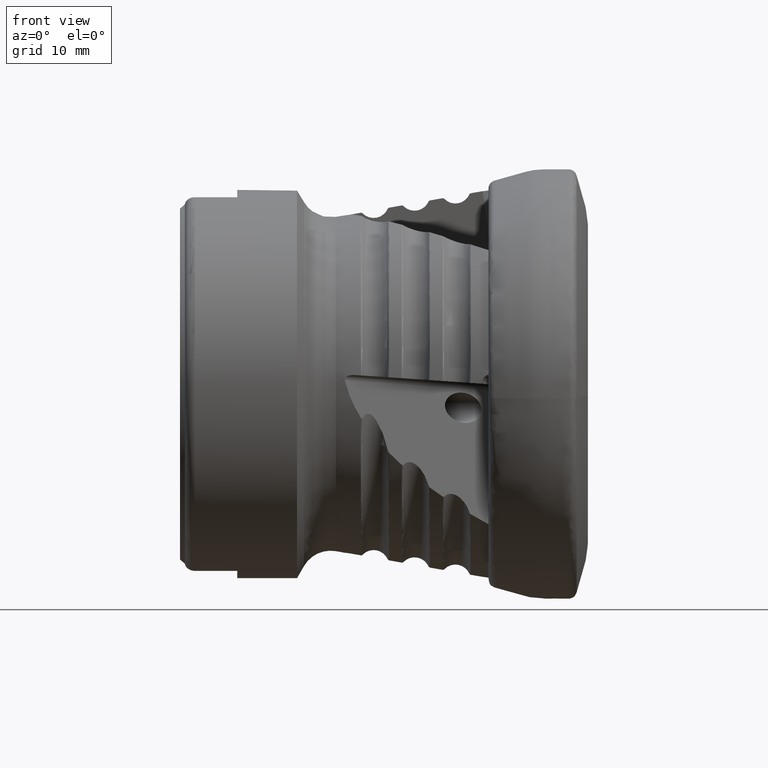
[diagram: clean part render]
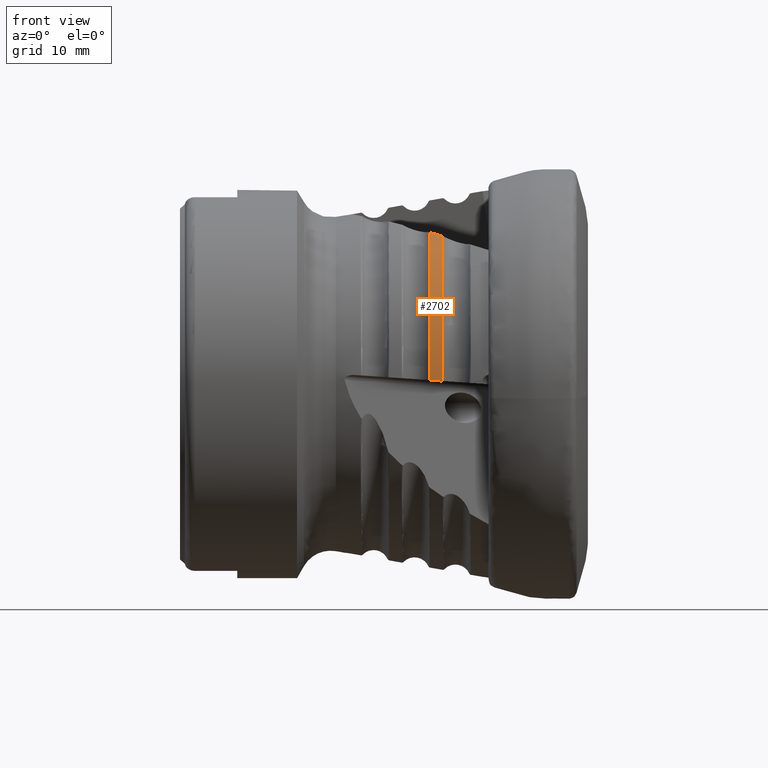
[diagram: same view with one face highlighted and labeled with its STEP entity id]
A machine part, front view. The second image highlights one B-rep face of the part: STEP entity #2702.
In plain terms, the highlighted conical surface has half-angle 9.928 deg.
Its self-contained STEP definition (entity closure, byte-faithful):
#157 = B_SPLINE_CURVE_WITH_KNOTS ( 'NONE', 3,
 ( #4597, #215, #5772, #845 ),
 .UNSPECIFIED., .F., .F.,
 ( 4, 4 ),
 ( 2.035607901788819600E-007, 0.001244659099788397300 ),
 .UNSPECIFIED. ) ;
#207 = CARTESIAN_POINT ( 'NONE',  ( -13.72949393109019300, -10.72089343970409400, 14.60611917307303100 ) ) ;
#215 = CARTESIAN_POINT ( 'NONE',  ( -13.71692775298188300, -18.11533347845106300, 0.3176182126530244200 ) ) ;
#253 = ORIENTED_EDGE ( 'NONE', *, *, #8087, .F. ) ;
#481 = CIRCLE ( 'NONE', #2706, 18.18943080960135800 ) ;
#618 = ORIENTED_EDGE ( 'NONE', *, *, #3080, .T. ) ;
#815 = DIRECTION ( 'NONE',  ( -1.000000000000000000, 0.0000000000000000000, 0.0000000000000000000 ) ) ;
#845 = CARTESIAN_POINT ( 'NONE',  ( -14.53201490601524200, -17.97152127923654100, 0.3746146587207507300 ) ) ;
#994 = CARTESIAN_POINT ( 'NONE',  ( -14.53201490601524200, -17.97152127923654100, 0.3746146587207507300 ) ) ;
#1337 = VERTEX_POINT ( 'NONE', #6191 ) ;
#1487 = DIRECTION ( 'NONE',  ( 1.000000000000000000, -0.0000000000000000000, -0.0000000000000000000 ) ) ;
#1610 = AXIS2_PLACEMENT_3D ( 'NONE', #7408, #6185, #8023 ) ;
#1613 = EDGE_CURVE ( 'NONE', #3922, #2506, #157, .T. ) ;
#1922 = CARTESIAN_POINT ( 'NONE',  ( -13.30936546724134200, -11.00512143068415800, 14.48249617549306100 ) ) ;
#2090 = CARTESIAN_POINT ( 'NONE',  ( -14.13708355802631000, -10.43495915570102600, 14.72440616229960700 ) ) ;
#2506 = VERTEX_POINT ( 'NONE', #994 ) ;
#2509 =( BOUNDED_CURVE ( )  B_SPLINE_CURVE ( 3, ( #3311, #2090, #207, #4589 ),
 .UNSPECIFIED., .F., .F. ) 
 B_SPLINE_CURVE_WITH_KNOTS ( ( 4, 4 ),
 ( 3.630230336012596900, 3.664467858714361100 ),
 .UNSPECIFIED. ) 
 CURVE ( )  GEOMETRIC_REPRESENTATION_ITEM ( )  RATIONAL_B_SPLINE_CURVE ( ( 1.000000000000000000, 0.9999023183887879600, 0.9999023183887879600, 1.000000000000000000 ) ) 
 REPRESENTATION_ITEM ( '' )  );
#2702 = ADVANCED_FACE ( 'NONE', ( #6250 ), #7705, .T. ) ;
#2706 = AXIS2_PLACEMENT_3D ( 'NONE', #4556, #815, #5189 ) ;
#3055 = CARTESIAN_POINT ( 'NONE',  ( -13.30936546724134200, -18.18713291218199000, 0.2891186813427826800 ) ) ;
#3080 = EDGE_CURVE ( 'NONE', #3922, #3406, #481, .T. ) ;
#3311 = CARTESIAN_POINT ( 'NONE',  ( -14.53201490601522000, -10.14740237023964100, 14.83732247978170300 ) ) ;
#3406 = VERTEX_POINT ( 'NONE', #1922 ) ;
#3675 = EDGE_LOOP ( 'NONE', ( #6827, #618, #253, #6153 ) ) ;
#3922 = VERTEX_POINT ( 'NONE', #3055 ) ;
#4556 = CARTESIAN_POINT ( 'NONE',  ( -13.30936546724134400, 0.0000000000000000000, 0.0000000000000000000 ) ) ;
#4589 = CARTESIAN_POINT ( 'NONE',  ( -13.30936546724134200, -11.00512143068415800, 14.48249617549306100 ) ) ;
#4597 = CARTESIAN_POINT ( 'NONE',  ( -13.30936546724134200, -18.18713291218199000, 0.2891186813427826800 ) ) ;
#5015 = EDGE_CURVE ( 'NONE', #1337, #2506, #6646, .T. ) ;
#5189 = DIRECTION ( 'NONE',  ( 0.0000000000000000000, 0.0000000000000000000, -1.000000000000000000 ) ) ;
#5223 = CARTESIAN_POINT ( 'NONE',  ( -14.53201490601524200, 0.0000000000000000000, 0.0000000000000000000 ) ) ;
#5772 = CARTESIAN_POINT ( 'NONE',  ( -14.12447772733913500, -18.04346378062878700, 0.3461168830674821700 ) ) ;
#5857 = DIRECTION ( 'NONE',  ( 0.0000000000000000000, 0.0000000000000000000, -1.000000000000000000 ) ) ;
#6153 = ORIENTED_EDGE ( 'NONE', *, *, #5015, .T. ) ;
#6185 = DIRECTION ( 'NONE',  ( 1.000000000000000000, -0.0000000000000000000, -0.0000000000000000000 ) ) ;
#6191 = CARTESIAN_POINT ( 'NONE',  ( -14.53201490601522000, -10.14740237023964100, 14.83732247978170300 ) ) ;
#6250 = FACE_OUTER_BOUND ( 'NONE', #3675, .T. ) ;
#6535 = AXIS2_PLACEMENT_3D ( 'NONE', #5223, #1487, #5857 ) ;
#6646 = CIRCLE ( 'NONE', #6535, 17.97542525874089500 ) ;
#6827 = ORIENTED_EDGE ( 'NONE', *, *, #1613, .F. ) ;
#7408 = CARTESIAN_POINT ( 'NONE',  ( -8.050000000000000700, 0.0000000000000000000, 0.0000000000000000000 ) ) ;
#7705 = CONICAL_SURFACE ( 'NONE', #1610, 19.10999999999999900, 0.1732789170367394800 ) ;
#8023 = DIRECTION ( 'NONE',  ( 0.0000000000000000000, 0.0000000000000000000, -1.000000000000000000 ) ) ;
#8087 = EDGE_CURVE ( 'NONE', #1337, #3406, #2509, .T. ) ;